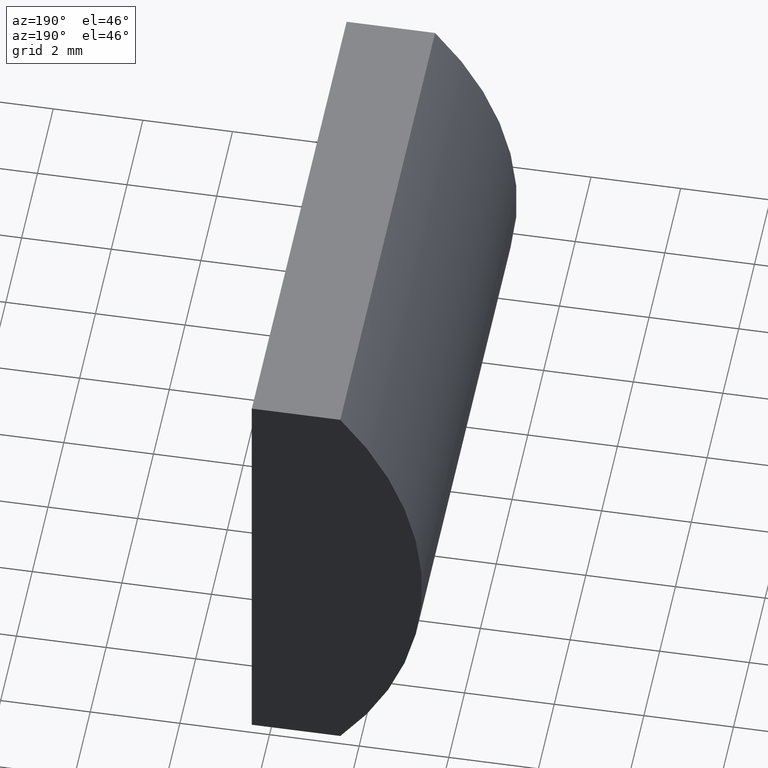
[diagram: clean part render]
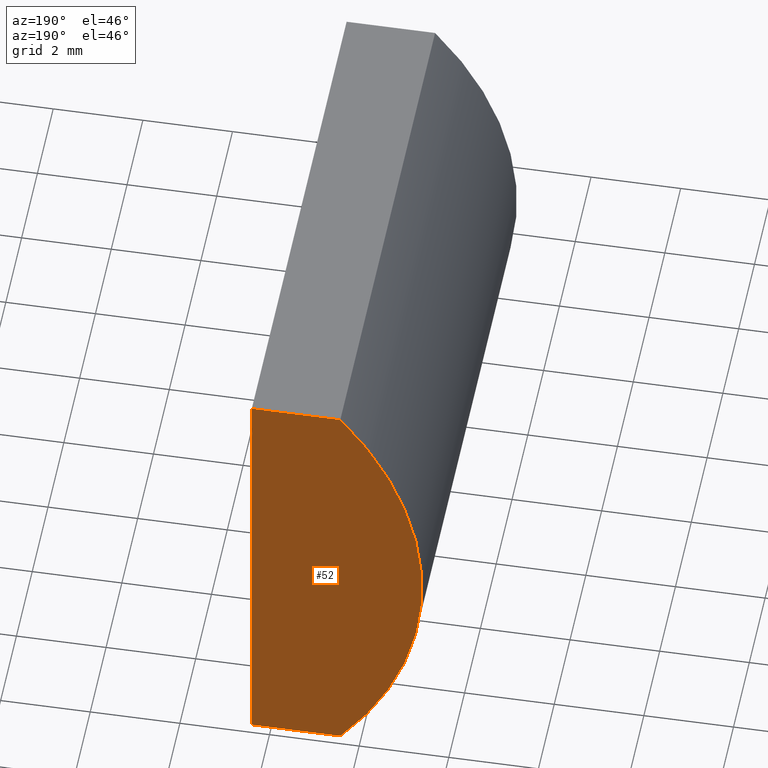
[diagram: same view with one face highlighted and labeled with its STEP entity id]
A machine part, auxiliary view. The second image highlights one B-rep face of the part: STEP entity #52.
In plain terms, the highlighted planar face has unit normal (0, 1, 0).
Its self-contained STEP definition (entity closure, byte-faithful):
#12 = CARTESIAN_POINT ( 'NONE',  ( 4.355204334851265500, 12.00000000000000000, 4.286263797015675000E-017 ) ) ;
#14 = VECTOR ( 'NONE', #63, 1000.000000000000000 ) ;
#20 = CARTESIAN_POINT ( 'NONE',  ( -1.579237509164058500, 12.00000000000000000, -5.000000000000000000 ) ) ;
#22 = VERTEX_POINT ( 'NONE', #124 ) ;
#29 = VERTEX_POINT ( 'NONE', #43 ) ;
#33 = CARTESIAN_POINT ( 'NONE',  ( -1.579237509164058500, 12.00000000000000000, -5.000000000000000000 ) ) ;
#43 = CARTESIAN_POINT ( 'NONE',  ( 0.3952043348512662100, 12.00000000000000000, 5.000000000000000000 ) ) ;
#44 = CIRCLE ( 'NONE', #144, 7.759999999999999800 ) ;
#47 = CARTESIAN_POINT ( 'NONE',  ( -1.579237509164058500, 12.00000000000000000, 5.000000000000000000 ) ) ;
#52 = ADVANCED_FACE ( 'NONE', ( #71 ), #181, .T. ) ;
#55 = EDGE_CURVE ( 'NONE', #82, #150, #44, .T. ) ;
#56 = DIRECTION ( 'NONE',  ( 0.0000000000000000000, 1.000000000000000000, 0.0000000000000000000 ) ) ;
#59 = EDGE_CURVE ( 'NONE', #29, #22, #83, .T. ) ;
#63 = DIRECTION ( 'NONE',  ( -1.000000000000000000, -0.0000000000000000000, 8.785892991656764200E-016 ) ) ;
#64 = CARTESIAN_POINT ( 'NONE',  ( -1.579237509164058500, 12.00000000000000000, 5.000000000000000000 ) ) ;
#65 = LINE ( 'NONE', #33, #14 ) ;
#71 = FACE_OUTER_BOUND ( 'NONE', #162, .T. ) ;
#72 = AXIS2_PLACEMENT_3D ( 'NONE', #12, #56, #81 ) ;
#73 = EDGE_CURVE ( 'NONE', #22, #82, #65, .T. ) ;
#81 = DIRECTION ( 'NONE',  ( 0.0000000000000000000, -0.0000000000000000000, 1.000000000000000000 ) ) ;
#82 = VERTEX_POINT ( 'NONE', #20 ) ;
#83 = LINE ( 'NONE', #126, #179 ) ;
#87 = EDGE_CURVE ( 'NONE', #150, #29, #116, .T. ) ;
#91 = DIRECTION ( 'NONE',  ( 0.0000000000000000000, 0.0000000000000000000, 1.000000000000000000 ) ) ;
#106 = ORIENTED_EDGE ( 'NONE', *, *, #73, .T. ) ;
#113 = DIRECTION ( 'NONE',  ( 1.000000000000000000, 0.0000000000000000000, 0.0000000000000000000 ) ) ;
#116 = LINE ( 'NONE', #47, #146 ) ;
#121 = DIRECTION ( 'NONE',  ( 0.0000000000000000000, 1.000000000000000000, 0.0000000000000000000 ) ) ;
#124 = CARTESIAN_POINT ( 'NONE',  ( 0.3952043348512631600, 12.00000000000000000, -5.000000000000001800 ) ) ;
#126 = CARTESIAN_POINT ( 'NONE',  ( 0.3952043348512631600, 12.00000000000000000, -5.000000000000001800 ) ) ;
#138 = ORIENTED_EDGE ( 'NONE', *, *, #55, .T. ) ;
#142 = ORIENTED_EDGE ( 'NONE', *, *, #59, .T. ) ;
#144 = AXIS2_PLACEMENT_3D ( 'NONE', #184, #121, #91 ) ;
#146 = VECTOR ( 'NONE', #113, 1000.000000000000000 ) ;
#150 = VERTEX_POINT ( 'NONE', #64 ) ;
#157 = DIRECTION ( 'NONE',  ( -3.035766082959411900E-016, -0.0000000000000000000, -1.000000000000000000 ) ) ;
#162 = EDGE_LOOP ( 'NONE', ( #138, #193, #142, #106 ) ) ;
#179 = VECTOR ( 'NONE', #157, 1000.000000000000000 ) ;
#181 = PLANE ( 'NONE',  #72 ) ;
#184 = CARTESIAN_POINT ( 'NONE',  ( 4.355204334851265500, 12.00000000000000000, 4.286263797015675000E-017 ) ) ;
#193 = ORIENTED_EDGE ( 'NONE', *, *, #87, .T. ) ;